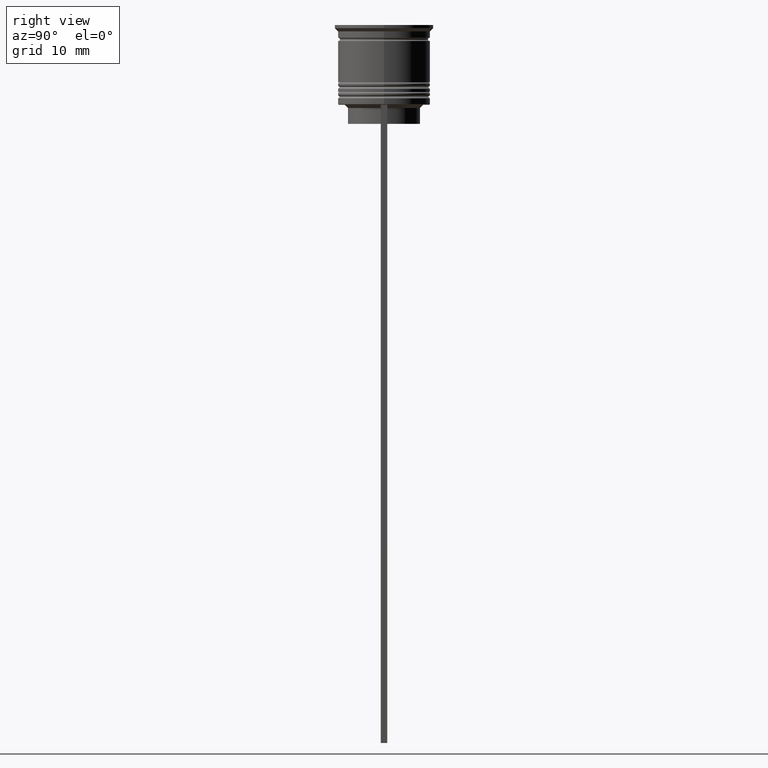
[diagram: clean part render]
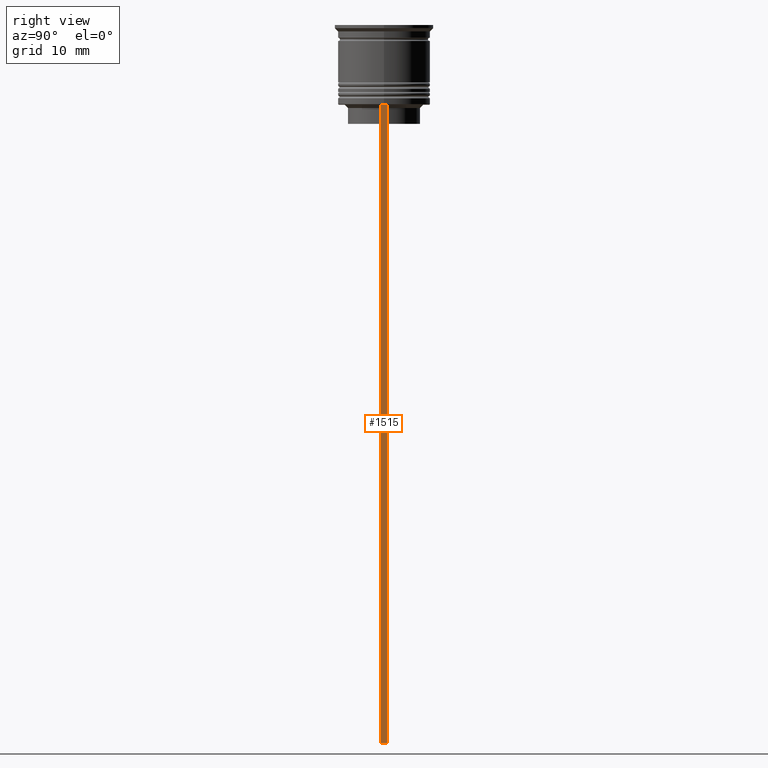
[diagram: same view with one face highlighted and labeled with its STEP entity id]
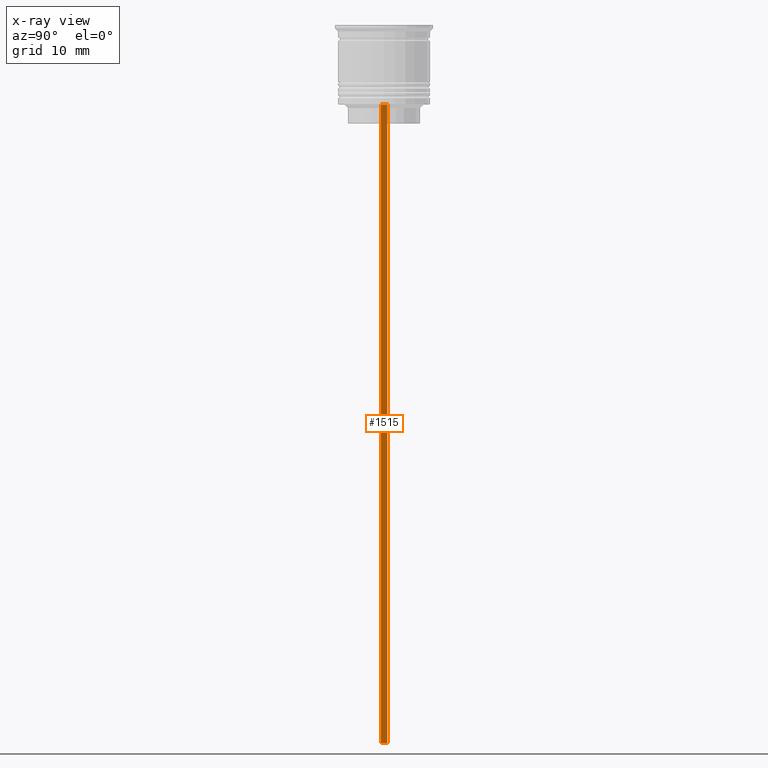
[diagram: x-ray of the same camera — body ghosted, the highlighted face saturated]
A machine part, right view. The second image highlights one B-rep face of the part: STEP entity #1515.
The next image is the same camera in x-ray: the body ghosted, the highlighted face saturated — about 0% of this face is hidden behind the body in this view.
In plain terms, the highlighted planar face has unit normal (-1, 0, 0).
Its self-contained STEP definition (entity closure, byte-faithful):
#4 = DIRECTION ( 'NONE',  ( 0.000000000000000000, 0.000000000000000000, -1.000000000000000000 ) ) ;
#167 = LINE ( 'NONE', #1981, #487 ) ;
#230 = ORIENTED_EDGE ( 'NONE', *, *, #1673, .T. ) ;
#261 = DIRECTION ( 'NONE',  ( -1.000000000000000000, 0.000000000000000000, 0.000000000000000000 ) ) ;
#307 = LINE ( 'NONE', #1514, #2023 ) ;
#413 = EDGE_CURVE ( 'NONE', #2055, #1782, #307, .T. ) ;
#472 = DIRECTION ( 'NONE',  ( 0.000000000000000000, 0.000000000000000000, 1.000000000000000000 ) ) ;
#487 = VECTOR ( 'NONE', #4, 1000.000000000000000 ) ;
#511 = CARTESIAN_POINT ( 'NONE',  ( 7.000000000000012434, 0.4999999999999978351, -12.50000000000000000 ) ) ;
#568 = VERTEX_POINT ( 'NONE', #699 ) ;
#640 = PLANE ( 'NONE',  #898 ) ;
#699 = CARTESIAN_POINT ( 'NONE',  ( 7.000000000000012434, 0.4999999999999978351, -112.5000000000000000 ) ) ;
#875 = LINE ( 'NONE', #1983, #1878 ) ;
#881 = CARTESIAN_POINT ( 'NONE',  ( 7.000000000000012434, -0.5000000000000022204, -112.5000000000000000 ) ) ;
#898 = AXIS2_PLACEMENT_3D ( 'NONE', #1516, #261, #472 ) ;
#944 = EDGE_CURVE ( 'NONE', #1782, #981, #167, .T. ) ;
#981 = VERTEX_POINT ( 'NONE', #881 ) ;
#1014 = EDGE_CURVE ( 'NONE', #2055, #568, #2005, .T. ) ;
#1021 = DIRECTION ( 'NONE',  ( 0.000000000000000000, -1.000000000000000000, 0.000000000000000000 ) ) ;
#1038 = ORIENTED_EDGE ( 'NONE', *, *, #413, .T. ) ;
#1302 = DIRECTION ( 'NONE',  ( 0.000000000000000000, 0.000000000000000000, -1.000000000000000000 ) ) ;
#1322 = ORIENTED_EDGE ( 'NONE', *, *, #944, .T. ) ;
#1514 = CARTESIAN_POINT ( 'NONE',  ( 7.000000000000012434, -0.5000000000000022204, -12.50000000000000000 ) ) ;
#1515 = ADVANCED_FACE ( 'NONE', ( #2092 ), #640, .F. ) ;
#1516 = CARTESIAN_POINT ( 'NONE',  ( 7.000000000000012434, -0.5000000000000022204, 1.535668847618198329 ) ) ;
#1673 = EDGE_CURVE ( 'NONE', #981, #568, #875, .T. ) ;
#1782 = VERTEX_POINT ( 'NONE', #2034 ) ;
#1837 = CARTESIAN_POINT ( 'NONE',  ( 7.000000000000012434, 0.4999999999999978351, 1.535668847618198329 ) ) ;
#1859 = ORIENTED_EDGE ( 'NONE', *, *, #1014, .F. ) ;
#1878 = VECTOR ( 'NONE', #2193, 1000.000000000000000 ) ;
#1912 = VECTOR ( 'NONE', #1302, 1000.000000000000000 ) ;
#1981 = CARTESIAN_POINT ( 'NONE',  ( 7.000000000000012434, -0.5000000000000022204, 1.535668847618198329 ) ) ;
#1983 = CARTESIAN_POINT ( 'NONE',  ( 7.000000000000012434, -0.5000000000000022204, -112.5000000000000000 ) ) ;
#2005 = LINE ( 'NONE', #1837, #1912 ) ;
#2023 = VECTOR ( 'NONE', #1021, 1000.000000000000000 ) ;
#2033 = EDGE_LOOP ( 'NONE', ( #1859, #1038, #1322, #230 ) ) ;
#2034 = CARTESIAN_POINT ( 'NONE',  ( 7.000000000000012434, -0.5000000000000022204, -12.50000000000000000 ) ) ;
#2055 = VERTEX_POINT ( 'NONE', #511 ) ;
#2092 = FACE_OUTER_BOUND ( 'NONE', #2033, .T. ) ;
#2193 = DIRECTION ( 'NONE',  ( 0.000000000000000000, 1.000000000000000000, 0.000000000000000000 ) ) ;